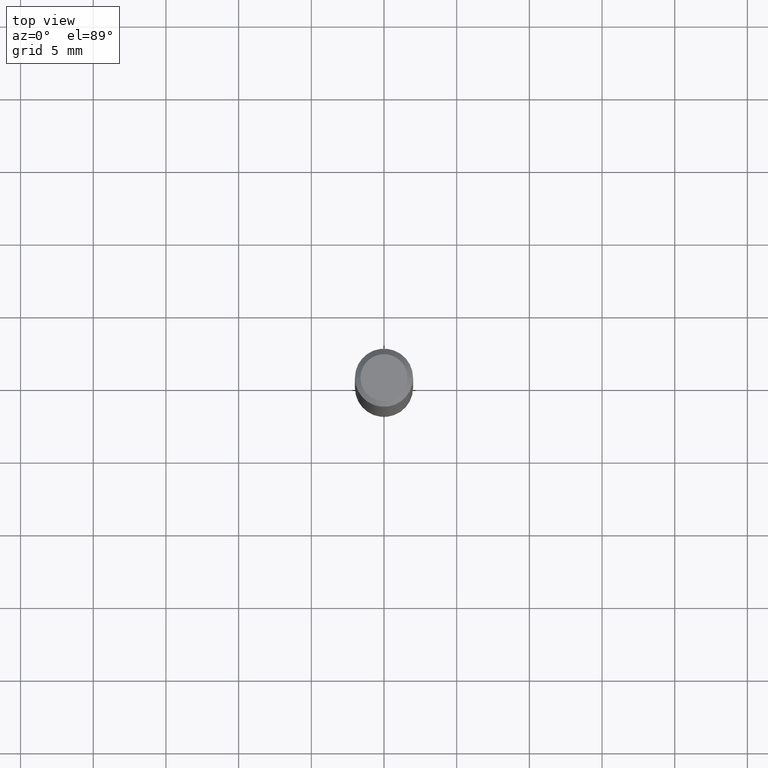
[diagram: clean part render]
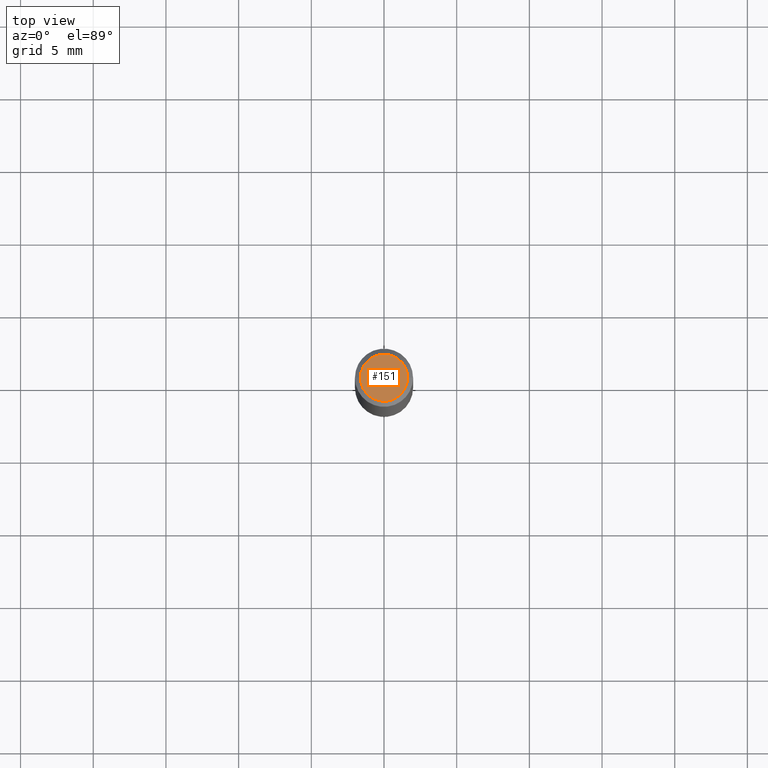
[diagram: same view with one face highlighted and labeled with its STEP entity id]
A machine part, top view. The second image highlights one B-rep face of the part: STEP entity #151.
In plain terms, the highlighted planar face has unit normal (0, -0, -1).
Its self-contained STEP definition (entity closure, byte-faithful):
#33 = VERTEX_POINT ( 'NONE', #228 ) ;
#53 = DIRECTION ( 'NONE',  ( -2.445468806185136597E-29, 3.491481338843145583E-15, 1.000000000000000000 ) ) ;
#79 = EDGE_LOOP ( 'NONE', ( #175, #421 ) ) ;
#84 = CARTESIAN_POINT ( 'NONE',  ( 4.451638707024993845E-16, 0.06375000000000000111, -3.383373223977406317E-16 ) ) ;
#100 = VERTEX_POINT ( 'NONE', #163 ) ;
#119 = FACE_OUTER_BOUND ( 'NONE', #79, .T. ) ;
#151 = ADVANCED_FACE ( 'NONE', ( #119 ), #404, .F. ) ;
#160 = EDGE_CURVE ( 'NONE', #100, #33, #331, .T. ) ;
#163 = CARTESIAN_POINT ( 'NONE',  ( -0.06375000000000000111, 4.713499807438225296E-16, -2.315107740929834566E-16 ) ) ;
#164 = DIRECTION ( 'NONE',  ( 1.000000000000000000, -6.982962677686265922E-15, 4.852736867747365646E-29 ) ) ;
#175 = ORIENTED_EDGE ( 'NONE', *, *, #160, .T. ) ;
#188 = EDGE_CURVE ( 'NONE', #33, #100, #256, .T. ) ;
#206 = CARTESIAN_POINT ( 'NONE',  ( 5.661523763401571692E-45, -8.083155474867715899E-31, -2.315107740929802519E-16 ) ) ;
#228 = CARTESIAN_POINT ( 'NONE',  ( 0.06375000000000000111, -5.149965923825456210E-16, -2.315107740929768499E-16 ) ) ;
#229 = AXIS2_PLACEMENT_3D ( 'NONE', #348, #53, #164 ) ;
#230 = DIRECTION ( 'NONE',  ( 2.438088387897960049E-29, -3.491481338843145188E-15, -1.000000000000000000 ) ) ;
#234 = AXIS2_PLACEMENT_3D ( 'NONE', #206, #346, #442 ) ;
#256 = CIRCLE ( 'NONE', #229, 0.06375000000000000111 ) ;
#331 = CIRCLE ( 'NONE', #234, 0.06375000000000000111 ) ;
#346 = DIRECTION ( 'NONE',  ( -2.445468806185136597E-29, 3.491481338843145583E-15, 1.000000000000000000 ) ) ;
#348 = CARTESIAN_POINT ( 'NONE',  ( 5.661523763401571692E-45, -8.083155474867715899E-31, -2.315107740929802519E-16 ) ) ;
#369 = DIRECTION ( 'NONE',  ( -1.000000000000000000, 6.982962677686265922E-15, -4.876176775795935793E-29 ) ) ;
#404 = PLANE ( 'NONE',  #410 ) ;
#410 = AXIS2_PLACEMENT_3D ( 'NONE', #84, #230, #369 ) ;
#421 = ORIENTED_EDGE ( 'NONE', *, *, #188, .T. ) ;
#442 = DIRECTION ( 'NONE',  ( 1.000000000000000000, -6.982962677686265922E-15, 4.852736867747365646E-29 ) ) ;